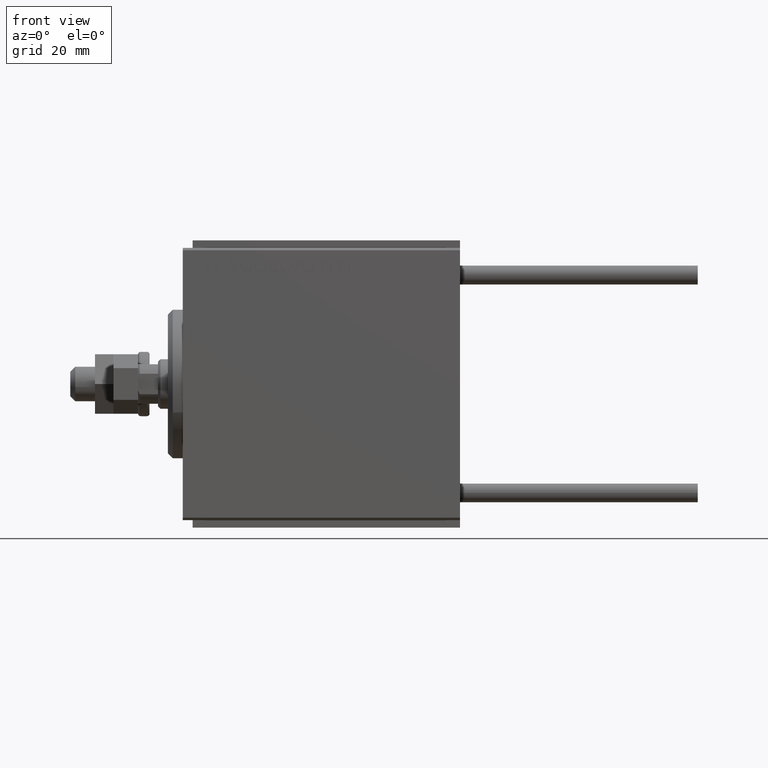
[diagram: clean part render]
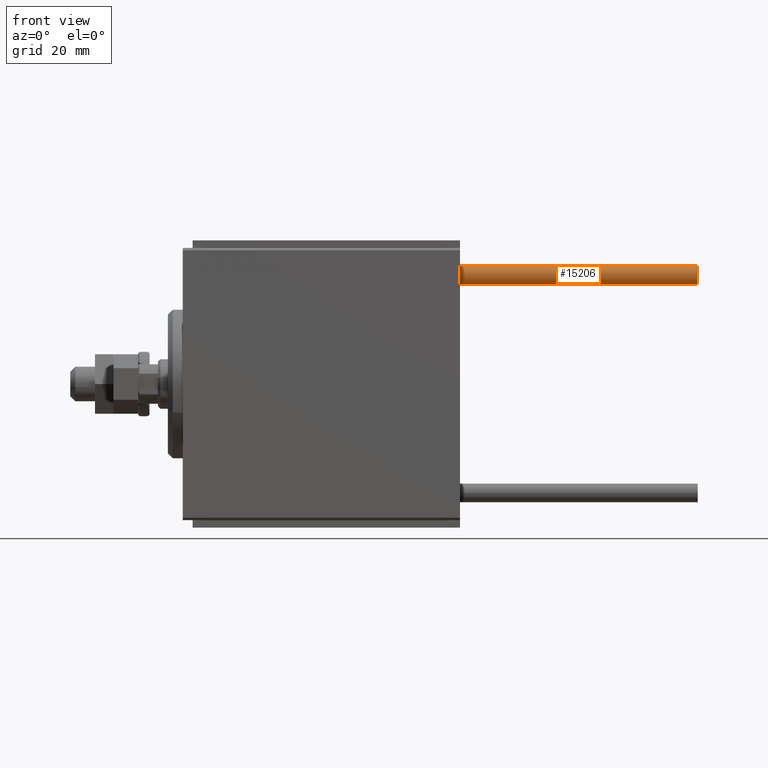
[diagram: same view with one face highlighted and labeled with its STEP entity id]
A machine part, front view. The second image highlights one B-rep face of the part: STEP entity #15206.
In plain terms, the highlighted cylindrical surface (edge-blend (fillet) strip) has radius 1.9 mm, axis along (-1, -0, 0).
Its self-contained STEP definition (entity closure, byte-faithful):
#781 = AXIS2_PLACEMENT_3D ( 'NONE', #48574, #36121, #28984 ) ;
#1177 = AXIS2_PLACEMENT_3D ( 'NONE', #15846, #46898, #43343 ) ;
#3714 = VECTOR ( 'NONE', #32786, 1000.000000000000000 ) ;
#6181 = VERTEX_POINT ( 'NONE', #31056 ) ;
#8150 = CIRCLE ( 'NONE', #781, 1.899999999999999467 ) ;
#8204 = CARTESIAN_POINT ( 'NONE',  ( 1.899999999999999467, 2.326828918379970872E-16, 48.00000000000000000 ) ) ;
#8292 = CIRCLE ( 'NONE', #12358, 1.899999999999999467 ) ;
#9606 = ORIENTED_EDGE ( 'NONE', *, *, #16372, .F. ) ;
#12184 = CARTESIAN_POINT ( 'NONE',  ( 0.000000000000000000, 0.000000000000000000, 48.00000000000000000 ) ) ;
#12358 = AXIS2_PLACEMENT_3D ( 'NONE', #12184, #29136, #44170 ) ;
#15206 = ADVANCED_FACE ( 'NONE', ( #41567 ), #34929, .T. ) ;
#15286 = VERTEX_POINT ( 'NONE', #8204 ) ;
#15846 = CARTESIAN_POINT ( 'NONE',  ( 0.000000000000000000, 0.000000000000000000, 48.00000000000000000 ) ) ;
#16372 = EDGE_CURVE ( 'NONE', #15286, #20391, #48562, .T. ) ;
#18513 = VECTOR ( 'NONE', #22781, 1000.000000000000000 ) ;
#20391 = VERTEX_POINT ( 'NONE', #33961 ) ;
#20752 = ORIENTED_EDGE ( 'NONE', *, *, #22080, .T. ) ;
#22080 = EDGE_CURVE ( 'NONE', #6181, #34400, #49756, .T. ) ;
#22781 = DIRECTION ( 'NONE',  ( -0.000000000000000000, -0.000000000000000000, -1.000000000000000000 ) ) ;
#26823 = EDGE_LOOP ( 'NONE', ( #9606, #30911, #20752, #43239 ) ) ;
#28922 = CARTESIAN_POINT ( 'NONE',  ( -1.899999999999999467, 0.000000000000000000, 0.000000000000000000 ) ) ;
#28984 = DIRECTION ( 'NONE',  ( 1.000000000000000000, 0.000000000000000000, 0.000000000000000000 ) ) ;
#29136 = DIRECTION ( 'NONE',  ( 0.000000000000000000, 0.000000000000000000, 1.000000000000000000 ) ) ;
#30225 = EDGE_CURVE ( 'NONE', #34400, #20391, #8150, .T. ) ;
#30911 = ORIENTED_EDGE ( 'NONE', *, *, #38254, .F. ) ;
#31056 = CARTESIAN_POINT ( 'NONE',  ( -1.899999999999999467, 0.000000000000000000, 48.00000000000000000 ) ) ;
#32786 = DIRECTION ( 'NONE',  ( -0.000000000000000000, -0.000000000000000000, -1.000000000000000000 ) ) ;
#33721 = CARTESIAN_POINT ( 'NONE',  ( -1.899999999999999467, 0.000000000000000000, 48.00000000000000000 ) ) ;
#33961 = CARTESIAN_POINT ( 'NONE',  ( 1.899999999999999467, 2.326828918379970872E-16, 0.000000000000000000 ) ) ;
#34400 = VERTEX_POINT ( 'NONE', #28922 ) ;
#34929 = CYLINDRICAL_SURFACE ( 'NONE', #1177, 1.899999999999999467 ) ;
#36121 = DIRECTION ( 'NONE',  ( 0.000000000000000000, 0.000000000000000000, 1.000000000000000000 ) ) ;
#36355 = CARTESIAN_POINT ( 'NONE',  ( 1.899999999999999467, 2.326828918379970872E-16, 48.00000000000000000 ) ) ;
#38254 = EDGE_CURVE ( 'NONE', #6181, #15286, #8292, .T. ) ;
#41567 = FACE_OUTER_BOUND ( 'NONE', #26823, .T. ) ;
#43239 = ORIENTED_EDGE ( 'NONE', *, *, #30225, .T. ) ;
#43343 = DIRECTION ( 'NONE',  ( -1.000000000000000000, 0.000000000000000000, 0.000000000000000000 ) ) ;
#44170 = DIRECTION ( 'NONE',  ( 1.000000000000000000, 0.000000000000000000, 0.000000000000000000 ) ) ;
#46898 = DIRECTION ( 'NONE',  ( -0.000000000000000000, -0.000000000000000000, -1.000000000000000000 ) ) ;
#48562 = LINE ( 'NONE', #36355, #3714 ) ;
#48574 = CARTESIAN_POINT ( 'NONE',  ( 0.000000000000000000, 0.000000000000000000, 0.000000000000000000 ) ) ;
#49756 = LINE ( 'NONE', #33721, #18513 ) ;